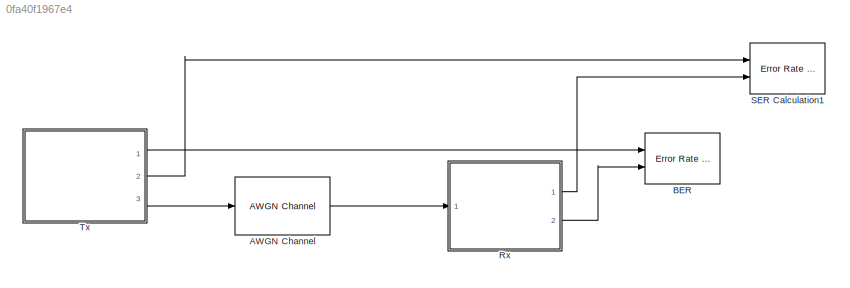
MODEL slx_0fa40f1967e4
KIND model
BLOCK [Reference] AWGN Channel  REF=commchan3/AWGN
Channel
  EbNodB = 10
  EsNodB = SNR
  InputProcessing = Inherited (this choice will be removed - see release notes)
  Ports = [1, 1]
  Ps = 0.5
  SNRdB = 10
  SourceBlock = commchan3/AWGN\nChannel
  SourceType = AWGN Channel
  Tsym = 1/100000
  UserDataPersistent = on
  bitsPerSym = 1
  noiseMode = Signal to noise ratio  (Es/No)
  seed = 1234
  variance = 1
BLOCK [Reference] BER  REF=commsink2/Error Rate
Calculation
  N = 0
  PMode = Workspace
  Ports = [2]
  RsMode2 = off
  SourceBlock = commsink2/Error Rate\nCalculation
  SourceType = Error Rate Calculation
  WsName = BER
  cp_mode = Entire frame
  maxBits = 1e6
  numErr = 100
  st_delay = 16
  stop = off
  subframe = []
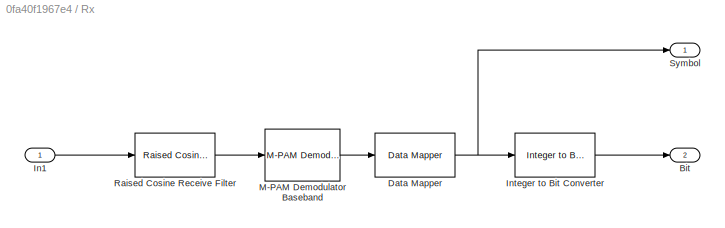
BLOCK [SubSystem] Rx
  Ports = [1, 2]
  RequestExecContextInheritance = off
BLOCK [Outport] Rx/Bit
  IconDisplay = Port number
  Port = 2
BLOCK [Reference] Rx/Data Mapper  REF=commutil2/Data Mapper
  M = 4
  MapMode = Gray to Binary
  MapVec = [0 1 3 2 7 6 4 5]
  Ports = [1, 1]
  SourceBlock = commutil2/Data Mapper
  SourceType = Data Mapper
BLOCK [Inport] Rx/In1
  IconDisplay = Port number
BLOCK [Reference] Rx/Integer to Bit Converter  REF=commutil2/Integer to Bit
Converter
  Ports = [1, 1]
  SourceBlock = commutil2/Integer to Bit\nConverter
  SourceType = Integer to Bit Converter
  bitOrder = MSB first
  nbits = 2
  outDtype = Inherit via internal rule
  signedInputValues = Unsigned
BLOCK [Reference] Rx/M-PAM Demodulator Baseband  REF=commdigbbndam3/M-PAM
Demodulator
Baseband
  AvgPow = 1
  Dec = Gray
  M = 4
  MinDist = 2
  OutType = Integer
  PeakPow = 1
  Ports = [1, 1]
  PowType = Min. distance between symbols
  SourceBlock = commdigbbndam3/M-PAM\nDemodulator\nBaseband
  SourceType = M-PAM Demodulator Baseband
  denormFactorDTMode = Same word length as input
  denormFactorWordLen = 16
  outDtype1 = Inherit via internal rule
  outDtype2 = Inherit via internal rule
  prodOutDTMode = Inherit via internal rule
  prodOutOverflowMode = Wrap
  prodOutRoundingMode = Floor
  prodOutWordLen = 16
  sumDTMode = Inherit via internal rule
  sumWordLen = 16
BLOCK [Reference] Rx/Raised Cosine Receive Filter  REF=commfilt2/Raised Cosine
Receive Filter
  D = (2*(4))/2
  InputProcessing = Columns as channels (frame based)
  LockScale = off
  N = 10
  Ports = [1, 1]
  R = 0.25
  SourceBlock = commfilt2/Raised Cosine\nReceive Filter
  SourceType = Raised Cosine Receive Filter
  UserDataPersistent = on
  accumFracLength = 30
  accumMode = Same as product output
  accumWordLength = 32
  checkCoeff = off
  checkGain = Normalized
  coeffFracLength = 15
  coeffMode = Same word length as input
  coeffWordLength = 16
  currentFiltSpan = 2*(4)
  downFactor = 10
  downOffset = 0
  filtSpan = 2*(4)
  filtType = Square root
  filterGain = 1
  framing = Enforce single-rate processing
  launchFVT = on
  outputFracLength = 15
  outputMode = Same as accumulator
  outputWordLength = 16
  overflowMode = off
  prodOutputFracLength = 30
  prodOutputMode = Same as input
  prodOutputWordLength = 32
  rateMode = Downsampling
  roundingMode = Floor
  sampMode = Mute
  saveAsFlag = 0
  variableName = rcRxFilt
BLOCK [Outport] Rx/Symbol
  IconDisplay = Port number
BLOCK [Reference] SER Calculation1  REF=commsink2/Error Rate
Calculation
  N = 0
  PMode = Workspace
  Ports = [2]
  RsMode2 = off
  SourceBlock = commsink2/Error Rate\nCalculation
  SourceType = Error Rate Calculation
  WsName = SER
  cp_mode = Entire frame
  maxBits = 1e6
  numErr = 100
  st_delay = 8
  stop = off
  subframe = []
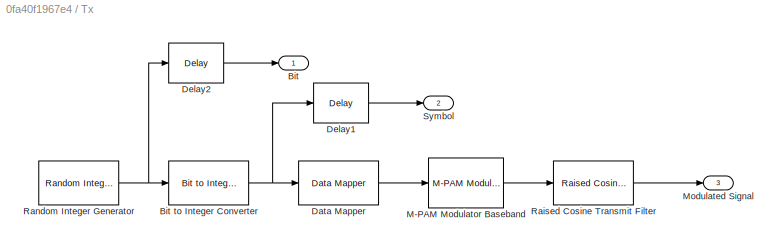
BLOCK [SubSystem] Tx
  Ports = [0, 3]
  RequestExecContextInheritance = off
BLOCK [Outport] Tx/Bit
  IconDisplay = Port number
BLOCK [Reference] Tx/Bit to Integer Converter  REF=commutil2/Bit to Integer
Converter
  Ports = [1, 1]
  SourceBlock = commutil2/Bit to Integer\nConverter
  SourceType = Bit to Integer Converter
  bitOrder = MSB first
  nbits = 2
  outDtype = Inherit via internal rule
  outDtypeSigned = Inherit via internal rule
  signedOutputValues = Unsigned
BLOCK [Reference] Tx/Data Mapper  REF=commutil2/Data Mapper
  M = 4
  MapMode = Binary to Gray
  MapVec = [0 1 3 2 7 6 4 5]
  Ports = [1, 1]
  SourceBlock = commutil2/Data Mapper
  SourceType = Data Mapper
BLOCK [Reference] Tx/Delay1  REF=dspsigops/Delay
  InputProcessing = Columns as channels (frame based)
  Ports = [1, 1]
  SourceBlock = dspsigops/Delay
  SourceType = Delay
  UserDataPersistent = on
  delay = 8
  dif_ic_for_ch = off
  dif_ic_for_dly = off
  dly_unit = Samples
  ic = 0
  ic_detail = off
  reset_popup = None
BLOCK [Reference] Tx/Delay2  REF=dspsigops/Delay
  InputProcessing = Columns as channels (frame based)
  Ports = [1, 1]
  SourceBlock = dspsigops/Delay
  SourceType = Delay
  UserDataPersistent = on
  delay = 16
  dif_ic_for_ch = off
  dif_ic_for_dly = off
  dly_unit = Samples
  ic = 0
  ic_detail = off
  reset_popup = None
BLOCK [Reference] Tx/M-PAM Modulator Baseband  REF=commdigbbndam3/M-PAM
Modulator
Baseband
  AvgPow = 1
  Enc = Gray
  InType = Integer
  M = 4
  MinDist = 2
  PeakPow = 1
  Ports = [1, 1]
  PowType = Min. distance between symbols
  SourceBlock = commdigbbndam3/M-PAM\nModulator\nBaseband
  SourceType = M-PAM Modulator Baseband
  outDtype = double
  outFracLen = 15
  outFracLenMode = Best precision
  outUDDataType = sfix(16)
  outWordLen = 16
BLOCK [Outport] Tx/Modulated Signal
  IconDisplay = Port number
  Port = 3
BLOCK [Reference] Tx/Raised Cosine Transmit Filter  REF=commfilt2/Raised Cosine
Transmit Filter
  D = (2*(4))/2
  InputProcessing = Columns as channels (frame based)
  LockScale = off
  N = 10
  Ports = [1, 1]
  R = 0.25
  SourceBlock = commfilt2/Raised Cosine\nTransmit Filter
  SourceType = Raised Cosine Transmit Filter
  UserDataPersistent = on
  accumFracLength = 30
  accumMode = Inherit via internal rule
  accumWordLength = 32
  checkCoeff = off
  checkGain = Normalized
  coeffFracLength = 15
  coeffMode = Same word length as input
  coeffWordLength = 16
  currentFiltSpan = 2*(4)
  filtSpan = 2*(4)
  filtType = Square root
  filterGain = 1
  framing = Enforce single-rate processing
  launchFVT = on
  outputFracLength = 15
  outputMode = Same as accumulator
  outputWordLength = 16
  overflowMode = off
  prodOutputFracLength = 30
  prodOutputMode = Inherit via internal rule
  prodOutputWordLength = 32
  roundingMode = Floor
  sampMode = Mute
  saveAsFlag = 0
  variableName = rcTxFilt
BLOCK [Reference] Tx/Random Integer Generator  REF=commrandsrc2/Random Integer
Generator
  Ports = [0, 1]
  SourceBlock = commrandsrc2/Random Integer\nGenerator
  SourceType = Random Integer Generator
  Ts = 1/200000
  frameBased = on
  mul = 2
  orient = off
  outDataType = double
  sampPerFrame = 200000
  seed = 37
BLOCK [Outport] Tx/Symbol
  IconDisplay = Port number
  Port = 2
LINE AWGN Channel:1 -> Rx:1
NET Rx/Data Mapper:1 -> Rx/Integer to Bit Converter:1, Rx/Symbol:1
LINE Rx/In1:1 -> Rx/Raised Cosine Receive Filter:1
LINE Rx/Integer to Bit Converter:1 -> Rx/Bit:1
LINE Rx/M-PAM Demodulator Baseband:1 -> Rx/Data Mapper:1
LINE Rx/Raised Cosine Receive Filter:1 -> Rx/M-PAM Demodulator Baseband:1
LINE Rx:1 -> SER Calculation1:2
LINE Rx:2 -> BER:2
NET Tx/Bit to Integer Converter:1 -> Tx/Data Mapper:1, Tx/Delay1:1
LINE Tx/Data Mapper:1 -> Tx/M-PAM Modulator Baseband:1
LINE Tx/Delay1:1 -> Tx/Symbol:1
LINE Tx/Delay2:1 -> Tx/Bit:1
LINE Tx/M-PAM Modulator Baseband:1 -> Tx/Raised Cosine Transmit Filter:1
LINE Tx/Raised Cosine Transmit Filter:1 -> Tx/Modulated Signal:1
NET Tx/Random Integer Generator:1 -> Tx/Bit to Integer Converter:1, Tx/Delay2:1
LINE Tx:1 -> BER:1
LINE Tx:2 -> SER Calculation1:1
LINE Tx:3 -> AWGN Channel:1
note: NET lines group one-source signal fan-out (src -> all destinations, sorted); 1:1 wires keep LINE
